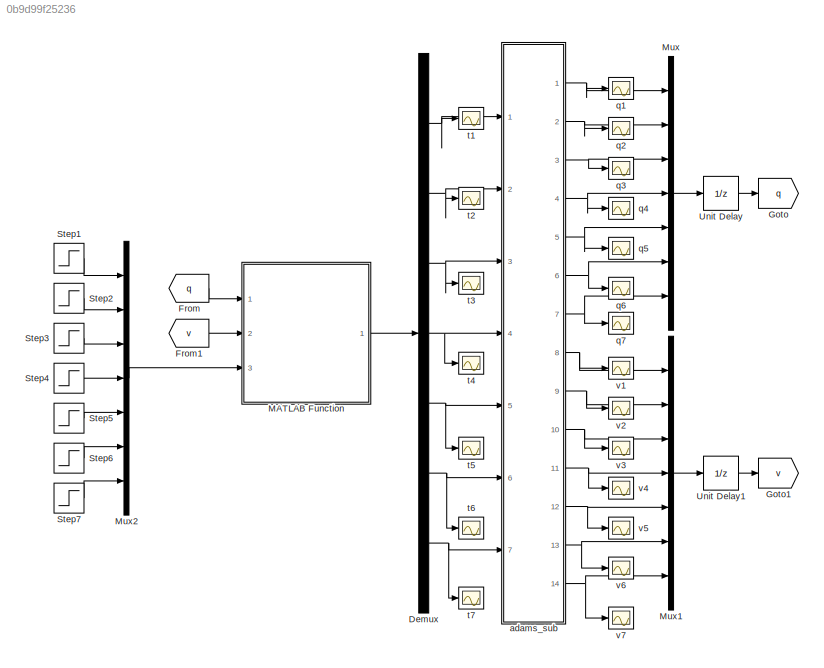
MODEL slx_0b9d99f25236
KIND model
CONFIG AbsTol = 1e-6
CONFIG EnableMultiTasking = off
CONFIG FixedStep = auto
CONFIG MaxStep = auto
CONFIG MinStep = auto
CONFIG RelTol = 1e-3
CONFIG SampleTimeConstraint = Unconstrained
CONFIG Solver = ode45
CONFIG SolverName = ode45
CONFIG StartTime = 0.0
CONFIG StopTime = 5
BLOCK [Demux] Demux
  DisplayOption = bar
  Outputs = 7
  Ports = [1, 7]
BLOCK [From] From
  GotoTag = q
BLOCK [From] From1
  GotoTag = v
BLOCK [Goto] Goto
  GotoTag = q
BLOCK [Goto] Goto1
  GotoTag = v
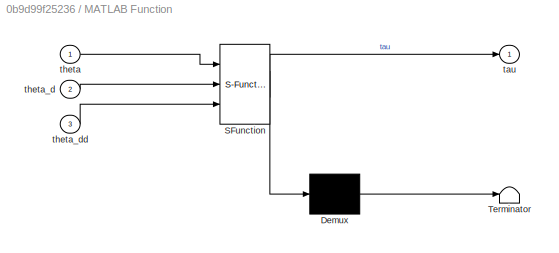
BLOCK [SubSystem] MATLAB Function
  ErrorFcn = Stateflow.Translate.translate
  PermitHierarchicalResolution = ExplicitOnly
  Ports = [3, 1]
  RequestExecContextInheritance = off
  SFBlockType = MATLAB Function
  TreatAsAtomicUnit = on
BLOCK [Demux] MATLAB Function/ Demux 
  Outputs = 1
  Ports = [1, 1]
BLOCK [S-Function] MATLAB Function/ SFunction 
  EnableBusSupport = on
  FunctionName = sf_sfun
  PortCounts = [3 2]
  Ports = [3, 2]
  SFcnIsStateOwnerBlock = off
  SFunctionDeploymentMode = off
  Tag = Stateflow S-Function dynamic 2
BLOCK [Terminator] MATLAB Function/ Terminator 
BLOCK [Outport] MATLAB Function/tau
  IconDisplay = Port number
BLOCK [Inport] MATLAB Function/theta
  IconDisplay = Port number
BLOCK [Inport] MATLAB Function/theta_d
  IconDisplay = Port number
  Port = 2
BLOCK [Inport] MATLAB Function/theta_dd
  IconDisplay = Port number
  Port = 3
BLOCK [Mux] Mux
  DisplayOption = bar
  Inputs = 7
  Ports = [7, 1]
BLOCK [Mux] Mux1
  DisplayOption = bar
  Inputs = 7
  Ports = [7, 1]
BLOCK [Mux] Mux2
  DisplayOption = bar
  Inputs = 7
  Ports = [7, 1]
BLOCK [Step] Step1
  After = 0.05
  SampleTime = 0
BLOCK [Step] Step2
  After = 0.05
  SampleTime = 0
BLOCK [Step] Step3
  After = 0.05
  SampleTime = 0
BLOCK [Step] Step4
  After = 0.05
  SampleTime = 0
BLOCK [Step] Step5
  After = 0.05
  SampleTime = 0
BLOCK [Step] Step6
  After = 0.05
  SampleTime = 0
BLOCK [Step] Step7
  After = 0.05
  SampleTime = 0
BLOCK [UnitDelay] Unit Delay
  InputProcessing = Elements as channels (sample based)
  SampleTime = -1
BLOCK [UnitDelay] Unit Delay1
  InputProcessing = Elements as channels (sample based)
  SampleTime = -1
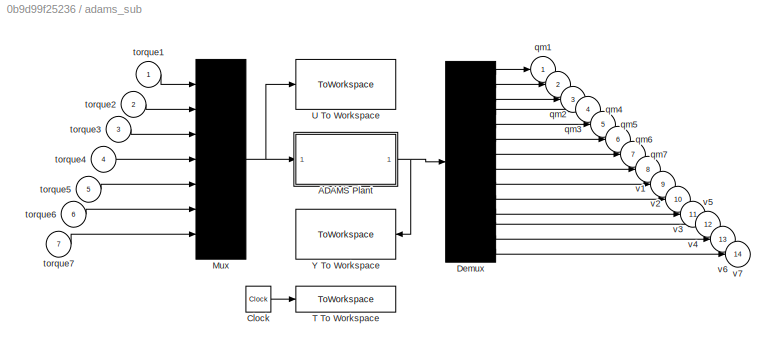
BLOCK [SubSystem] adams_sub
  Ports = [7, 14]
  RequestExecContextInheritance = off
  ShowPortLabels = none
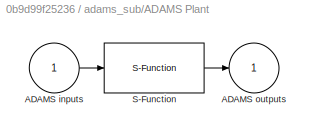
BLOCK [SubSystem] adams_sub/ADAMS Plant
  InitFcn = clear mex
  LoadFcn = %check based on dialog box setting for when setting by popup menu                                             \nif exist('ADAMS_solver_type')                                                                                 \n  if strcmp(ADAMS_solver_type,'C++')                                                                          \n    set_param(gcb,'exetyp','C++');                                 ...<+4486ch>
  OpenFcn = open_system(gcb,'mask')                                                                                                                          \nif not(exist('set_some_params_states'))                                                                                                          \n                                                                                                            ...<+625ch>
  Ports = [1, 1]
  RequestExecContextInheritance = off
BLOCK [Inport] adams_sub/ADAMS Plant/ADAMS inputs
  IconDisplay = Port number
BLOCK [Outport] adams_sub/ADAMS Plant/ADAMS outputs
  IconDisplay = Port number
  InitialOutput = 0
BLOCK [S-Function] adams_sub/ADAMS Plant/S-Function
  EnableBusSupport = off
  FunctionName = adams_plant
  Parameters = exevie,exesol,stat,outfil,nampre,o_rate,nam_in,namout,dft,modsim,modani,dt_out,inicmd,exetyp,comtyp,ada_host, workdir,pin_interp_order,pout_extrap_order,pin_extrap_order,pout_interp_order,simulink_lead_cosim
  Ports = [1, 1]
  SFcnIsStateOwnerBlock = off
  SFunctionDeploymentMode = off
  StopFcn = clear mex
BLOCK [Clock] adams_sub/Clock
BLOCK [Demux] adams_sub/Demux
  Outputs = 14
  Ports = [1, 14]
BLOCK [Mux] adams_sub/Mux
  Inputs = 7
  Ports = [7, 1]
BLOCK [ToWorkspace] adams_sub/T To Workspace
  MaxDataPoints = 100000
  Ports = [1]
  VariableName = ADAMS_tout
BLOCK [ToWorkspace] adams_sub/U To Workspace
  MaxDataPoints = 100000
  Ports = [1]
  VariableName = ADAMS_uout
BLOCK [ToWorkspace] adams_sub/Y To Workspace
  MaxDataPoints = 100000
  Ports = [1]
  VariableName = ADAMS_yout
BLOCK [Outport] adams_sub/qm1
  IconDisplay = Port number
BLOCK [Outport] adams_sub/qm2
  IconDisplay = Port number
  Port = 2
BLOCK [Outport] adams_sub/qm3
  IconDisplay = Port number
  Port = 3
BLOCK [Outport] adams_sub/qm4
  IconDisplay = Port number
  Port = 4
BLOCK [Outport] adams_sub/qm5
  IconDisplay = Port number
  Port = 5
BLOCK [Outport] adams_sub/qm6
  IconDisplay = Port number
  Port = 6
BLOCK [Outport] adams_sub/qm7
  IconDisplay = Port number
  Port = 7
BLOCK [Inport] adams_sub/torque1
  IconDisplay = Port number
BLOCK [Inport] adams_sub/torque2
  IconDisplay = Port number
  Port = 2
BLOCK [Inport] adams_sub/torque3
  IconDisplay = Port number
  Port = 3
BLOCK [Inport] adams_sub/torque4
  IconDisplay = Port number
  Port = 4
BLOCK [Inport] adams_sub/torque5
  IconDisplay = Port number
  Port = 5
BLOCK [Inport] adams_sub/torque6
  IconDisplay = Port number
  Port = 6
BLOCK [Inport] adams_sub/torque7
  IconDisplay = Port number
  Port = 7
BLOCK [Outport] adams_sub/v1 
  IconDisplay = Port number
  Port = 8
BLOCK [Outport] adams_sub/v2 
  IconDisplay = Port number
  Port = 9
BLOCK [Outport] adams_sub/v3 
  IconDisplay = Port number
  Port = 10
BLOCK [Outport] adams_sub/v4 
  IconDisplay = Port number
  Port = 11
BLOCK [Outport] adams_sub/v5 
  IconDisplay = Port number
  Port = 12
BLOCK [Outport] adams_sub/v6 
  IconDisplay = Port number
  Port = 13
BLOCK [Outport] adams_sub/v7 
  IconDisplay = Port number
  Port = 14
BLOCK [Scope] q1 
  Floating = off
  NumInputPorts = 1
  Ports = [1]
  ScopeSpecificationString = Simulink.scopes.TimeScopeBlockCfg('CurrentConfiguration', extmgr.ConfigurationSet(extmgr.Configuration('Core','General UI',true),extmgr.Configuration('Core','Source UI',true),extmgr.Configuration('Sources','WiredSimulink',true),extmgr.Configuration('Visuals','Time Domain',true,'SerializedDisplays',{struct('MinYLimReal','-3.02549','MaxYLimReal','27.2294','YLabelReal','','MinYLimMag','0.00000','MaxY...<+1362ch>
BLOCK [Scope] q2
  Floating = off
  NumInputPorts = 1
  Ports = [1]
  ScopeSpecificationString = Simulink.scopes.TimeScopeBlockCfg('CurrentConfiguration', extmgr.ConfigurationSet(extmgr.Configuration('Core','General UI',true),extmgr.Configuration('Core','Source UI',true),extmgr.Configuration('Sources','WiredSimulink',true,'DataLoggingVariableName','ScopeData1'),extmgr.Configuration('Visuals','Time Domain',true,'SerializedDisplays',{struct('MinYLimReal','-1.33876','MaxYLimReal','12.04886','YLa...<+1405ch>
BLOCK [Scope] q3
  Floating = off
  NumInputPorts = 1
  Ports = [1]
  ScopeSpecificationString = Simulink.scopes.TimeScopeBlockCfg('CurrentConfiguration', extmgr.ConfigurationSet(extmgr.Configuration('Core','General UI',true),extmgr.Configuration('Core','Source UI',true),extmgr.Configuration('Sources','WiredSimulink',true,'DataLoggingVariableName','ScopeData3'),extmgr.Configuration('Visuals','Time Domain',true,'SerializedDisplays',{struct('MinYLimReal','-19.22909','MaxYLimReal','173.0618','YL...<+1408ch>
BLOCK [Scope] q4
  Floating = off
  NumInputPorts = 1
  Ports = [1]
  ScopeSpecificationString = Simulink.scopes.TimeScopeBlockCfg('CurrentConfiguration', extmgr.ConfigurationSet(extmgr.Configuration('Core','General UI',true),extmgr.Configuration('Core','Source UI',true),extmgr.Configuration('Sources','WiredSimulink',true,'DataLoggingVariableName','ScopeData4'),extmgr.Configuration('Visuals','Time Domain',true,'SerializedDisplays',{struct('MinYLimReal','-0.99445','MaxYLimReal','0.11049','YLab...<+1401ch>
BLOCK [Scope] q5
  Floating = off
  NumInputPorts = 1
  Ports = [1]
  ScopeSpecificationString = Simulink.scopes.TimeScopeBlockCfg('CurrentConfiguration', extmgr.ConfigurationSet(extmgr.Configuration('Core','General UI',true),extmgr.Configuration('Core','Source UI',true),extmgr.Configuration('Sources','WiredSimulink',true,'DataLoggingVariableName','ScopeData5'),extmgr.Configuration('Visuals','Time Domain',true,'SerializedDisplays',{struct('MinYLimReal','-8.5631','MaxYLimReal','1.40242','YLabe...<+1399ch>
BLOCK [Scope] q6
  Floating = off
  NumInputPorts = 1
  Ports = [1]
  ScopeSpecificationString = Simulink.scopes.TimeScopeBlockCfg('CurrentConfiguration', extmgr.ConfigurationSet(extmgr.Configuration('Core','General UI',true),extmgr.Configuration('Core','Source UI',true),extmgr.Configuration('Sources','WiredSimulink',true,'DataLoggingVariableName','ScopeData6'),extmgr.Configuration('Visuals','Time Domain',true),extmgr.Configuration('Tools','Plot Navigation',true),extmgr.Configuration('Tools',...<+58ch>
BLOCK [Scope] q7
  Floating = off
  NumInputPorts = 1
  Ports = [1]
  ScopeSpecificationString = Simulink.scopes.TimeScopeBlockCfg('CurrentConfiguration', extmgr.ConfigurationSet(extmgr.Configuration('Core','General UI',true),extmgr.Configuration('Core','Source UI',true),extmgr.Configuration('Sources','WiredSimulink',true,'DataLoggingVariableName','ScopeData7'),extmgr.Configuration('Visuals','Time Domain',true),extmgr.Configuration('Tools','Plot Navigation',true),extmgr.Configuration('Tools',...<+58ch>
BLOCK [Scope] t1
  Floating = off
  NumInputPorts = 1
  Ports = [1]
  ScopeSpecificationString = Simulink.scopes.TimeScopeBlockCfg('CurrentConfiguration', extmgr.ConfigurationSet(extmgr.Configuration('Core','General UI',true),extmgr.Configuration('Core','Source UI',true),extmgr.Configuration('Sources','WiredSimulink',true,'DataLoggingVariableName','ScopeData14'),extmgr.Configuration('Visuals','Time Domain',true,'SerializedDisplays',{struct('MinYLimReal','-9.53333','MaxYLimReal','85.79994','YL...<+1402ch>
BLOCK [Scope] t2
  Floating = off
  NumInputPorts = 1
  Ports = [1]
  ScopeSpecificationString = Simulink.scopes.TimeScopeBlockCfg('CurrentConfiguration', extmgr.ConfigurationSet(extmgr.Configuration('Core','General UI',true),extmgr.Configuration('Core','Source UI',true),extmgr.Configuration('Sources','WiredSimulink',true,'DataLoggingVariableName','ScopeData15'),extmgr.Configuration('Visuals','Time Domain',true,'SerializedDisplays',{struct('MinYLimReal','-159.29972','MaxYLimReal','90.33884','...<+1410ch>
BLOCK [Scope] t3
  Floating = off
  NumInputPorts = 1
  Ports = [1]
  ScopeSpecificationString = Simulink.scopes.TimeScopeBlockCfg('CurrentConfiguration', extmgr.ConfigurationSet(extmgr.Configuration('Core','General UI',true),extmgr.Configuration('Core','Source UI',true),extmgr.Configuration('Sources','WiredSimulink',true,'DataLoggingVariableName','ScopeData16'),extmgr.Configuration('Visuals','Time Domain',true,'SerializedDisplays',{struct('MinYLimReal','-8.48936','MaxYLimReal','76.40425','YL...<+1402ch>
BLOCK [Scope] t4
  Floating = off
  NumInputPorts = 1
  Ports = [1]
  ScopeSpecificationString = Simulink.scopes.TimeScopeBlockCfg('CurrentConfiguration', extmgr.ConfigurationSet(extmgr.Configuration('Core','General UI',true),extmgr.Configuration('Core','Source UI',true),extmgr.Configuration('Sources','WiredSimulink',true,'DataLoggingVariableName','ScopeData17'),extmgr.Configuration('Visuals','Time Domain',true,'SerializedDisplays',{struct('MinYLimReal','-25.0319','MaxYLimReal','28.33934','YL...<+1402ch>
BLOCK [Scope] t5
  Floating = off
  NumInputPorts = 1
  Ports = [1]
  ScopeSpecificationString = Simulink.scopes.TimeScopeBlockCfg('CurrentConfiguration', extmgr.ConfigurationSet(extmgr.Configuration('Core','General UI',true),extmgr.Configuration('Core','Source UI',true),extmgr.Configuration('Sources','WiredSimulink',true,'DataLoggingVariableName','ScopeData18'),extmgr.Configuration('Visuals','Time Domain',true,'SerializedDisplays',{struct('MinYLimReal','-0.19002','MaxYLimReal','1.71016','YLa...<+1398ch>
BLOCK [Scope] t6
  Floating = off
  NumInputPorts = 1
  Ports = [1]
  ScopeSpecificationString = Simulink.scopes.TimeScopeBlockCfg('CurrentConfiguration', extmgr.ConfigurationSet(extmgr.Configuration('Core','General UI',true),extmgr.Configuration('Core','Source UI',true),extmgr.Configuration('Sources','WiredSimulink',true,'DataLoggingVariableName','ScopeData19'),extmgr.Configuration('Visuals','Time Domain',true,'SerializedDisplays',{struct('MinYLimReal','-1.71114','MaxYLimReal','0.19013','YLa...<+1398ch>
BLOCK [Scope] t7
  Floating = off
  NumInputPorts = 1
  Ports = [1]
  ScopeSpecificationString = Simulink.scopes.TimeScopeBlockCfg('CurrentConfiguration', extmgr.ConfigurationSet(extmgr.Configuration('Core','General UI',true),extmgr.Configuration('Core','Source UI',true),extmgr.Configuration('Sources','WiredSimulink',true,'DataLoggingVariableName','ScopeData20'),extmgr.Configuration('Visuals','Time Domain',true,'SerializedDisplays',{struct('MinYLimReal','-0.00003','MaxYLimReal','0.000038','YL...<+1404ch>
BLOCK [Scope] v1
  Floating = off
  NumInputPorts = 1
  Ports = [1]
  ScopeSpecificationString = Simulink.scopes.TimeScopeBlockCfg('CurrentConfiguration', extmgr.ConfigurationSet(extmgr.Configuration('Core','General UI',true),extmgr.Configuration('Core','Source UI',true),extmgr.Configuration('Sources','WiredSimulink',true,'DataLoggingVariableName','ScopeData2'),extmgr.Configuration('Visuals','Time Domain',true,'SerializedDisplays',{struct('MinYLimReal','-0.02682','MaxYLimReal','0.24141','YLab...<+1403ch>
BLOCK [Scope] v2
  Floating = off
  NumInputPorts = 1
  Ports = [1]
  ScopeSpecificationString = Simulink.scopes.TimeScopeBlockCfg('CurrentConfiguration', extmgr.ConfigurationSet(extmgr.Configuration('Core','General UI',true),extmgr.Configuration('Core','Source UI',true),extmgr.Configuration('Sources','WiredSimulink',true,'DataLoggingVariableName','ScopeData8'),extmgr.Configuration('Visuals','Time Domain',true,'SerializedDisplays',{struct('MinYLimReal','-0.02583','MaxYLimReal','0.23246','YLab...<+1427ch>
BLOCK [Scope] v3
  Floating = off
  NumInputPorts = 1
  Ports = [1]
  ScopeSpecificationString = Simulink.scopes.TimeScopeBlockCfg('CurrentConfiguration', extmgr.ConfigurationSet(extmgr.Configuration('Core','General UI',true),extmgr.Configuration('Core','Source UI',true),extmgr.Configuration('Sources','WiredSimulink',true,'DataLoggingVariableName','ScopeData9'),extmgr.Configuration('Visuals','Time Domain',true,'SerializedDisplays',{struct('MinYLimReal','-0.02317','MaxYLimReal','0.20856','YLab...<+1430ch>
BLOCK [Scope] v4
  Floating = off
  NumInputPorts = 1
  Ports = [1]
  ScopeSpecificationString = Simulink.scopes.TimeScopeBlockCfg('CurrentConfiguration', extmgr.ConfigurationSet(extmgr.Configuration('Core','General UI',true),extmgr.Configuration('Core','Source UI',true),extmgr.Configuration('Sources','WiredSimulink',true,'DataLoggingVariableName','ScopeData10'),extmgr.Configuration('Visuals','Time Domain',true,'SerializedDisplays',{struct('MinYLimReal','-0.02512','MaxYLimReal','0.22611','YLa...<+1431ch>
BLOCK [Scope] v5
  Floating = off
  NumInputPorts = 1
  Ports = [1]
  ScopeSpecificationString = Simulink.scopes.TimeScopeBlockCfg('CurrentConfiguration', extmgr.ConfigurationSet(extmgr.Configuration('Core','General UI',true),extmgr.Configuration('Core','Source UI',true),extmgr.Configuration('Sources','WiredSimulink',true,'DataLoggingVariableName','ScopeData11'),extmgr.Configuration('Visuals','Time Domain',true,'SerializedDisplays',{struct('MinYLimReal','-0.02507','MaxYLimReal','0.22562','YLa...<+1429ch>
BLOCK [Scope] v6
  Floating = off
  NumInputPorts = 1
  Ports = [1]
  ScopeSpecificationString = Simulink.scopes.TimeScopeBlockCfg('CurrentConfiguration', extmgr.ConfigurationSet(extmgr.Configuration('Core','General UI',true),extmgr.Configuration('Core','Source UI',true),extmgr.Configuration('Sources','WiredSimulink',true,'DataLoggingVariableName','ScopeData12'),extmgr.Configuration('Visuals','Time Domain',true,'SerializedDisplays',{struct('MinYLimReal','-0.02415','MaxYLimReal','0.21736','YLa...<+1429ch>
BLOCK [Scope] v7
  Floating = off
  NumInputPorts = 1
  Ports = [1]
  ScopeSpecificationString = Simulink.scopes.TimeScopeBlockCfg('CurrentConfiguration', extmgr.ConfigurationSet(extmgr.Configuration('Core','General UI',true),extmgr.Configuration('Core','Source UI',true),extmgr.Configuration('Sources','WiredSimulink',true,'DataLoggingVariableName','ScopeData13'),extmgr.Configuration('Visuals','Time Domain',true,'SerializedDisplays',{struct('MinYLimReal','-0.02504','MaxYLimReal','0.22532','YLa...<+1431ch>
NET Demux:1 -> adams_sub:1, t1:1
NET Demux:2 -> adams_sub:2, t2:1
NET Demux:3 -> adams_sub:3, t3:1
NET Demux:4 -> adams_sub:4, t4:1
NET Demux:5 -> adams_sub:5, t5:1
NET Demux:6 -> adams_sub:6, t6:1
NET Demux:7 -> adams_sub:7, t7:1
LINE From1:1 -> MATLAB Function:2
LINE From:1 -> MATLAB Function:1
LINE MATLAB Function:1 -> Demux:1
LINE Mux1:1 -> Unit Delay1:1
LINE Mux2:1 -> MATLAB Function:3
LINE Mux:1 -> Unit Delay:1
LINE Step1:1 -> Mux2:1
LINE Step2:1 -> Mux2:2
LINE Step3:1 -> Mux2:3
LINE Step4:1 -> Mux2:4
LINE Step5:1 -> Mux2:5
LINE Step6:1 -> Mux2:6
LINE Step7:1 -> Mux2:7
LINE Unit Delay1:1 -> Goto1:1
LINE Unit Delay:1 -> Goto:1
LINE adams_sub/ADAMS Plant/ADAMS inputs:1 -> adams_sub/ADAMS Plant/S-Function:1
LINE adams_sub/ADAMS Plant/S-Function:1 -> adams_sub/ADAMS Plant/ADAMS outputs:1
NET adams_sub/ADAMS Plant:1 -> adams_sub/Demux:1, adams_sub/Y To Workspace:1
LINE adams_sub/Clock:1 -> adams_sub/T To Workspace:1
LINE adams_sub/Demux:1 -> adams_sub/qm1:1
LINE adams_sub/Demux:10 -> adams_sub/v3 :1
LINE adams_sub/Demux:11 -> adams_sub/v4 :1
LINE adams_sub/Demux:12 -> adams_sub/v5 :1
LINE adams_sub/Demux:13 -> adams_sub/v6 :1
LINE adams_sub/Demux:14 -> adams_sub/v7 :1
LINE adams_sub/Demux:2 -> adams_sub/qm2:1
LINE adams_sub/Demux:3 -> adams_sub/qm3:1
LINE adams_sub/Demux:4 -> adams_sub/qm4:1
LINE adams_sub/Demux:5 -> adams_sub/qm5:1
LINE adams_sub/Demux:6 -> adams_sub/qm6:1
LINE adams_sub/Demux:7 -> adams_sub/qm7:1
LINE adams_sub/Demux:8 -> adams_sub/v1 :1
LINE adams_sub/Demux:9 -> adams_sub/v2 :1
NET adams_sub/Mux:1 -> adams_sub/ADAMS Plant:1, adams_sub/U To Workspace:1
LINE adams_sub/torque1:1 -> adams_sub/Mux:1
LINE adams_sub/torque2:1 -> adams_sub/Mux:2
LINE adams_sub/torque3:1 -> adams_sub/Mux:3
LINE adams_sub/torque4:1 -> adams_sub/Mux:4
LINE adams_sub/torque5:1 -> adams_sub/Mux:5
LINE adams_sub/torque6:1 -> adams_sub/Mux:6
LINE adams_sub/torque7:1 -> adams_sub/Mux:7
NET adams_sub:1 -> Mux:1, q1 :1
NET adams_sub:10 -> Mux1:3, v3:1
NET adams_sub:11 -> Mux1:4, v4:1
NET adams_sub:12 -> Mux1:5, v5:1
NET adams_sub:13 -> Mux1:6, v6:1
NET adams_sub:14 -> Mux1:7, v7:1
NET adams_sub:2 -> Mux:2, q2:1
NET adams_sub:3 -> Mux:3, q3:1
NET adams_sub:4 -> Mux:4, q4:1
NET adams_sub:5 -> Mux:5, q5:1
NET adams_sub:6 -> Mux:6, q6:1
NET adams_sub:7 -> Mux:7, q7:1
NET adams_sub:8 -> Mux1:1, v1:1
NET adams_sub:9 -> Mux1:2, v2:1
note: NET lines group one-source signal fan-out (src -> all destinations, sorted); 1:1 wires keep LINE
CHART MATLAB Function states=1 transitions=1
  STATE_LABEL 'eML_blk_kernel()'
  STATE_LABEL 'SCRIPT:\nfunction tau = dynamic_solver(theta, theta_d, theta_dd)\n%DH参数表\nDH=[0,     0,  0.28,theta(1)/180*pi;\n    pi/2,  0,  0.31,theta(2)/180*pi;\n   -pi/2,  0,  0.31,theta(3)/180*pi-pi/2;\n    0,   1.9,  0.27,theta(4)/180*pi;\n    0,   1.9,  0.27,theta(5)/180*pi+pi/2;\n    pi/2,  0,  0.31,theta(6)/180*pi;\n   -pi/2,  0,  0.65,theta(7)/180*pi];\n% 初始化\nw=zeros(3,8);\nwd=zeros(3,8);\nvd=zeros(3,8);\nvcd=zeros...<+2069ch>'
